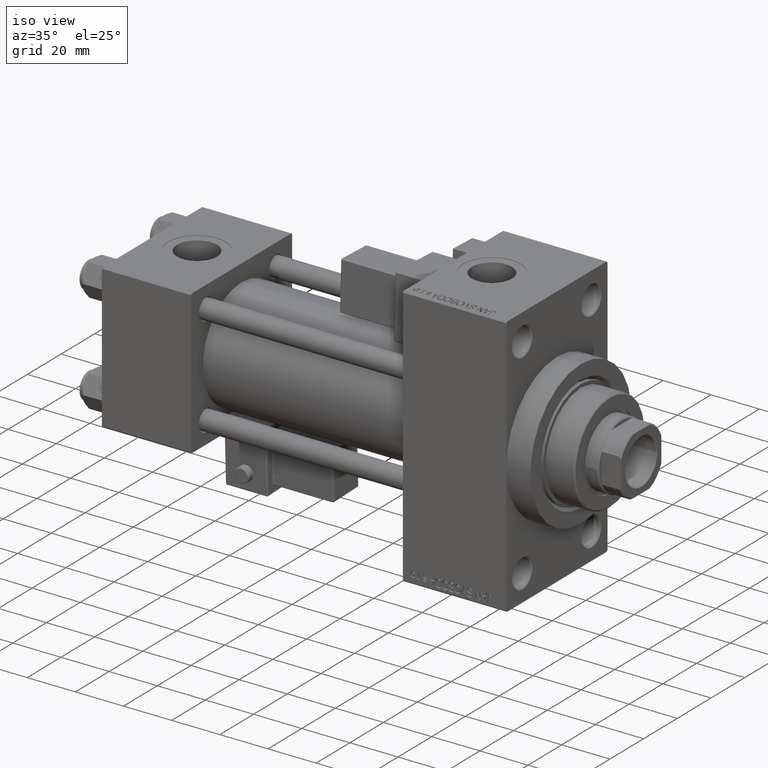
[diagram: clean part render]
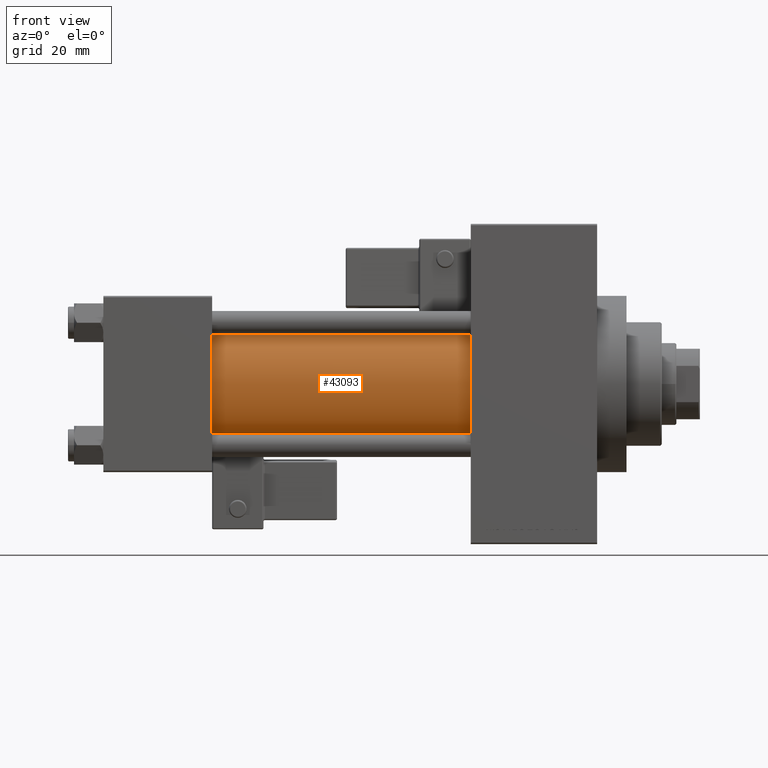
[diagram: tour spotlight — one face highlighted and labeled with its STEP entity id]
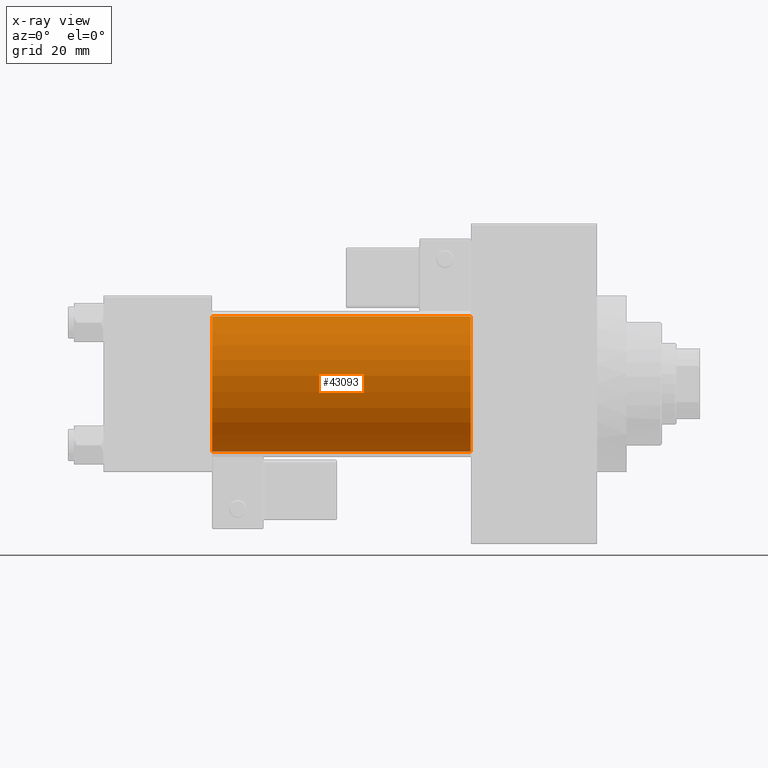
[diagram: x-ray of the same camera — body ghosted, this tour face saturated]
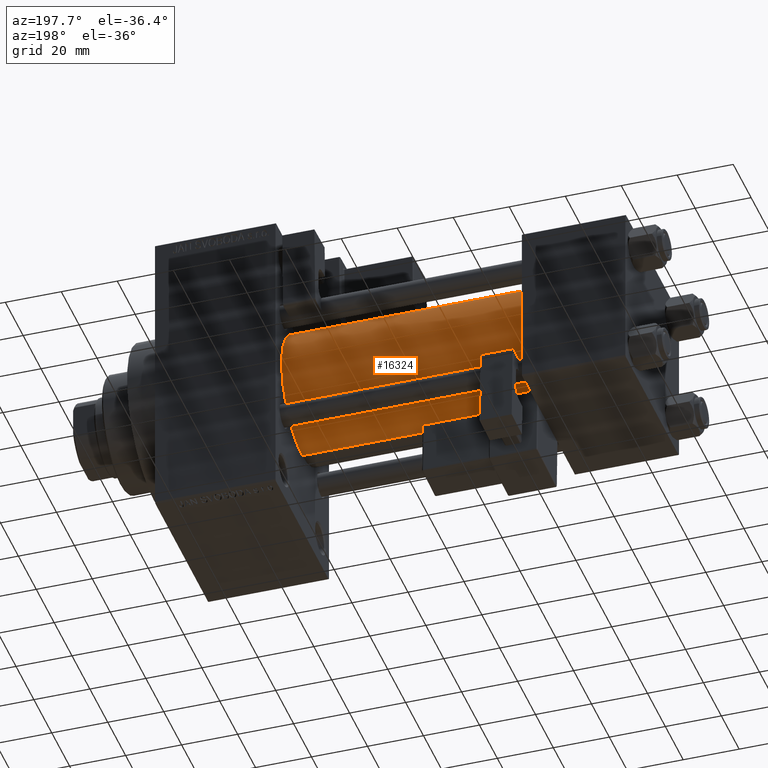
[diagram: tour spotlight — one face highlighted and labeled with its STEP entity id]
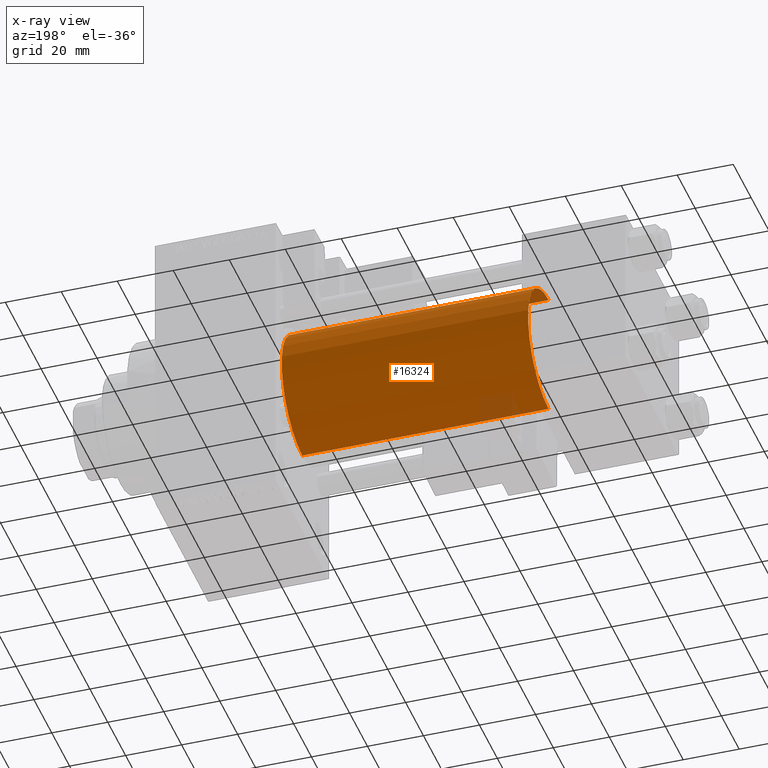
[diagram: x-ray of the same camera — body ghosted, this tour face saturated]
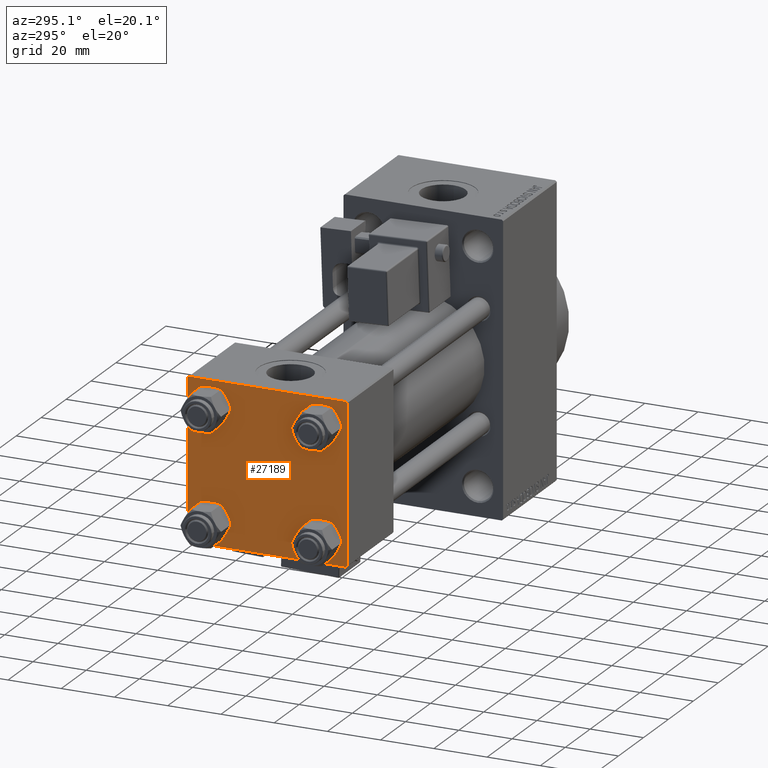
[diagram: tour spotlight — one face highlighted and labeled with its STEP entity id]
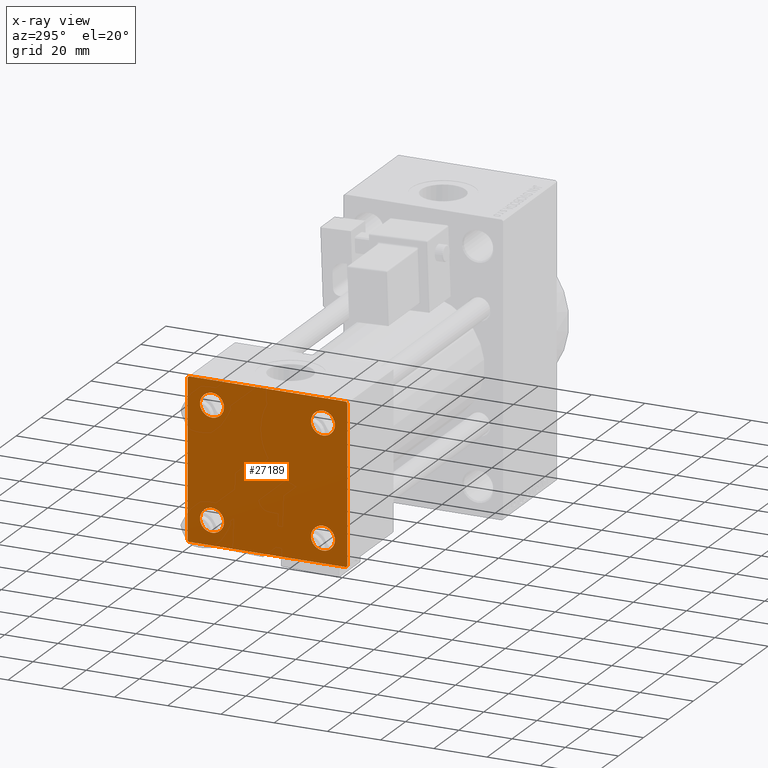
[diagram: x-ray of the same camera — body ghosted, this tour face saturated]
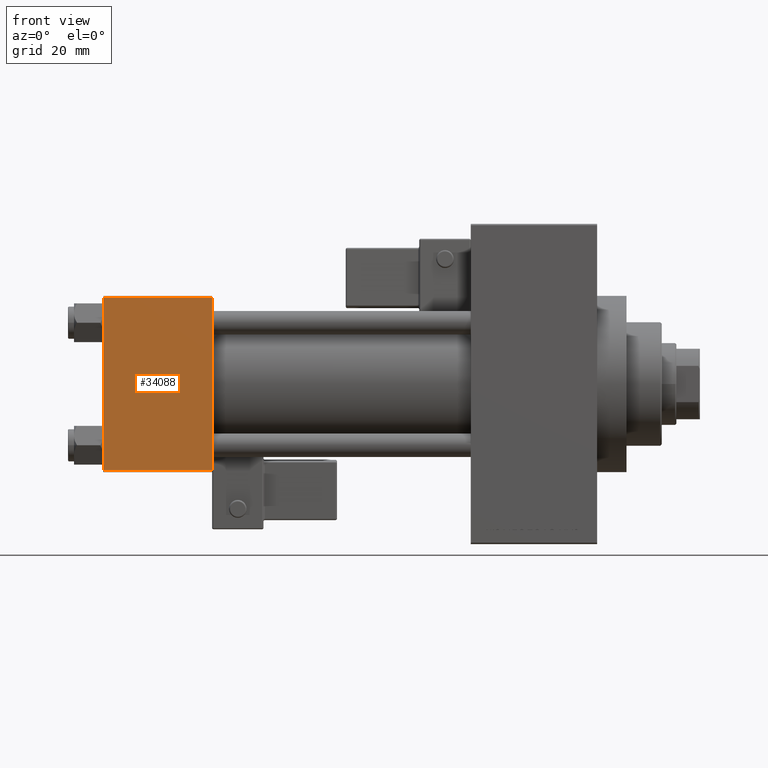
[diagram: tour spotlight — one face highlighted and labeled with its STEP entity id]
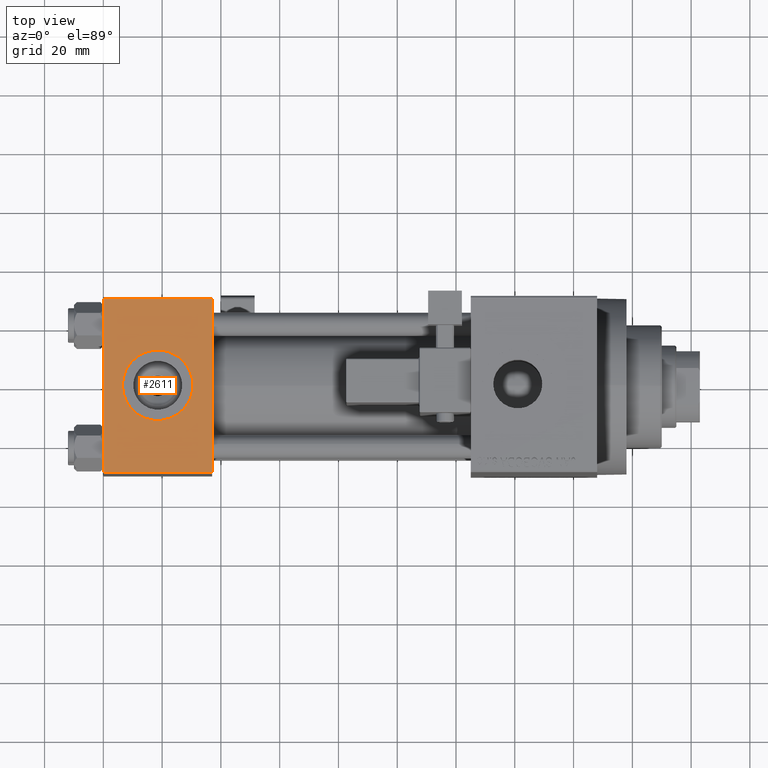
[diagram: tour spotlight — one face highlighted and labeled with its STEP entity id]
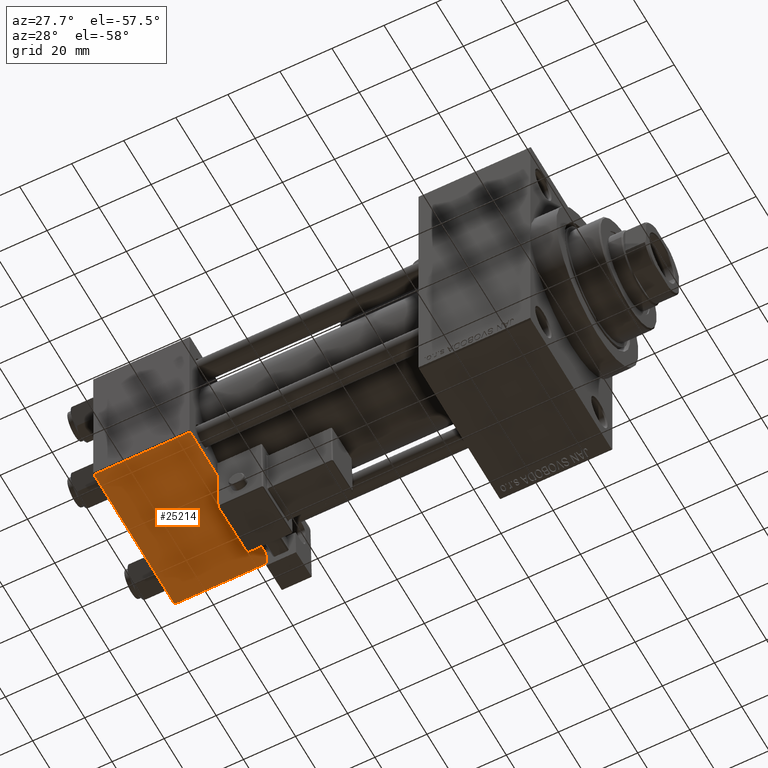
[diagram: tour spotlight — one face highlighted and labeled with its STEP entity id]
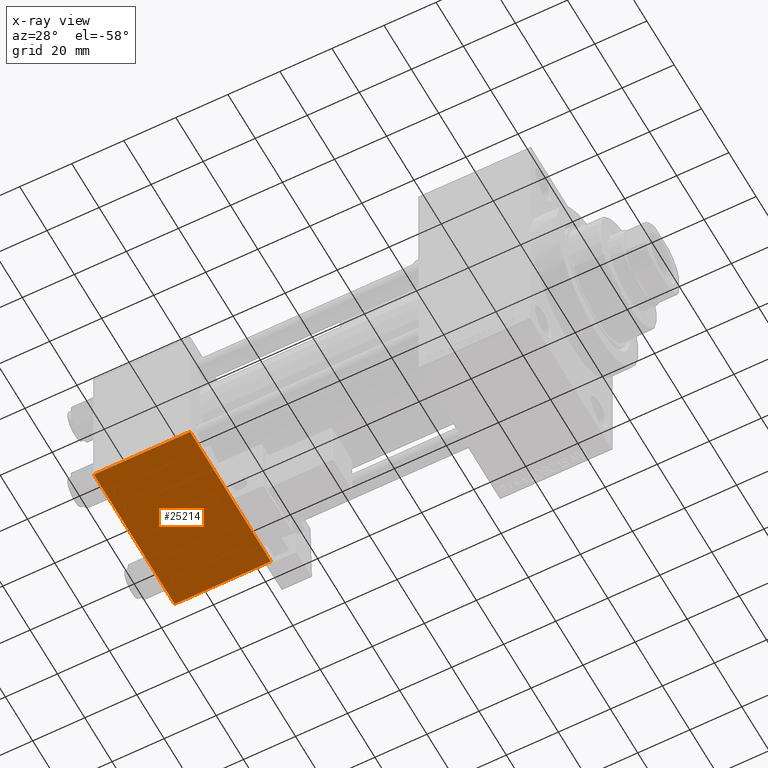
[diagram: x-ray of the same camera — body ghosted, this tour face saturated]
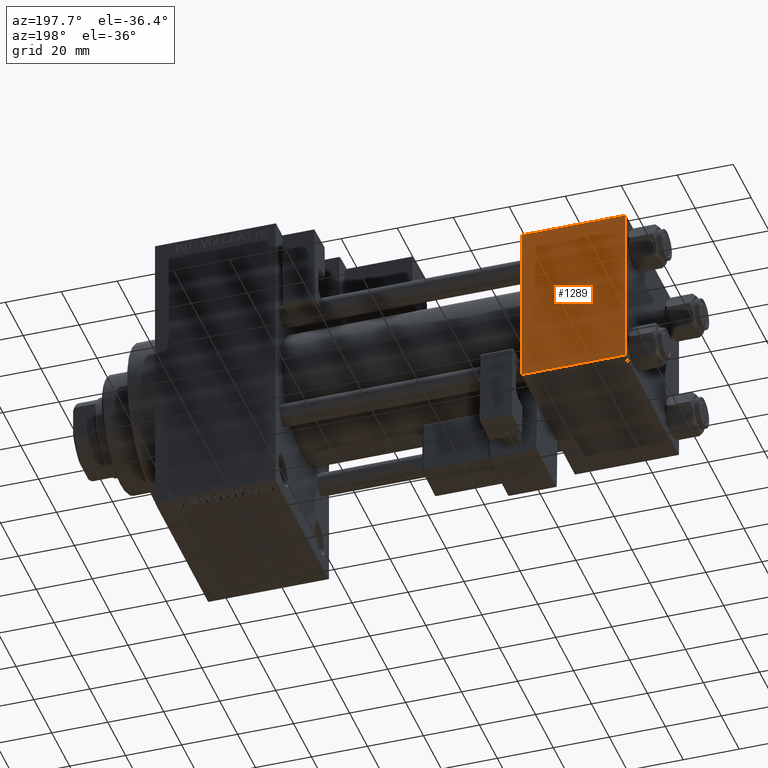
[diagram: tour spotlight — one face highlighted and labeled with its STEP entity id]
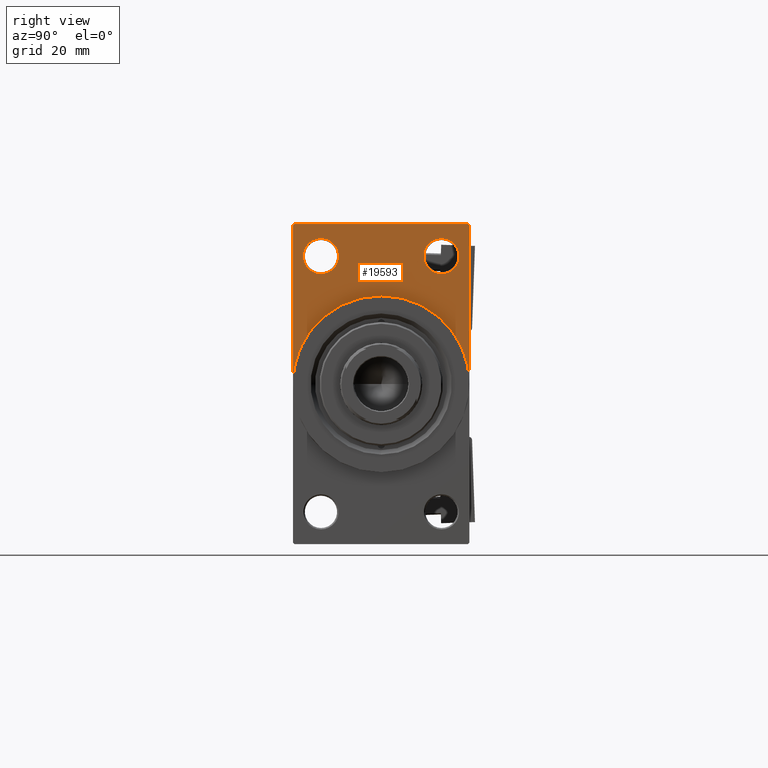
[diagram: tour spotlight — one face highlighted and labeled with its STEP entity id]
A machine part: a face-by-face anatomy tour. The part has 1268 B-rep faces; the first image is the clean iso view, then the 8 largest visible faces are spotlighted one at a time (largest first), each with its STEP entity span.

Face 1 — front view, entity #43093. An x-ray twin of the same camera follows (body ghosted, this face saturated) — the face is partly hidden behind the body. In plain terms, the highlighted cylindrical surface (partial cylindrical patch) has radius 23 mm, axis along (-1, -0, -0).
Definition (entity closure, byte-faithful):
#564 = CARTESIAN_POINT ( 'NONE',  ( 125.0000000000000000, -2.602085213965210642E-15, 0.000000000000000000 ) ) ;
#1056 = CYLINDRICAL_SURFACE ( 'NONE', #39770, 23.00000000000000000 ) ;
#3515 = CARTESIAN_POINT ( 'NONE',  ( 125.0000000000000000, 2.146024240737016609E-16, -23.00000000000000000 ) ) ;
#5657 = EDGE_CURVE ( 'NONE', #30389, #20634, #14041, .T. ) ;
#5686 = DIRECTION ( 'NONE',  ( 1.000000000000000000, 0.000000000000000000, 0.000000000000000000 ) ) ;
#7860 = FACE_OUTER_BOUND ( 'NONE', #36860, .T. ) ;
#8089 = CARTESIAN_POINT ( 'NONE',  ( 125.0000000000000000, -2.602085213965210642E-15, 23.00000000000000000 ) ) ;
#14041 = LINE ( 'NONE', #44699, #17873 ) ;
#14122 = CIRCLE ( 'NONE', #42220, 23.00000000000000000 ) ;
#15074 = LINE ( 'NONE', #3515, #20752 ) ;
#16394 = DIRECTION ( 'NONE',  ( -1.000000000000000000, -0.000000000000000000, -0.000000000000000000 ) ) ;
#17432 = AXIS2_PLACEMENT_3D ( 'NONE', #20281, #5686, #36348 ) ;
#17873 = VECTOR ( 'NONE', #44950, 1000.000000000000000 ) ;
#18183 = ORIENTED_EDGE ( 'NONE', *, *, #5657, .T. ) ;
#19003 = CIRCLE ( 'NONE', #17432, 23.00000000000000000 ) ;
#20281 = CARTESIAN_POINT ( 'NONE',  ( 125.0000000000000000, -2.602085213965210642E-15, 0.000000000000000000 ) ) ;
#20634 = VERTEX_POINT ( 'NONE', #36104 ) ;
#20752 = VECTOR ( 'NONE', #42219, 1000.000000000000000 ) ;
#25243 = DIRECTION ( 'NONE',  ( 0.000000000000000000, 0.000000000000000000, 1.000000000000000000 ) ) ;
#25769 = EDGE_CURVE ( 'NONE', #41494, #37450, #15074, .T. ) ;
#27455 = DIRECTION ( 'NONE',  ( 0.000000000000000000, 0.000000000000000000, 1.000000000000000000 ) ) ;
#29254 = DIRECTION ( 'NONE',  ( 1.000000000000000000, -0.000000000000000000, 0.000000000000000000 ) ) ;
#29704 = ORIENTED_EDGE ( 'NONE', *, *, #46707, .F. ) ;
#30137 = CARTESIAN_POINT ( 'NONE',  ( 37.00000000000000711, 2.146024240737016609E-16, -23.00000000000000000 ) ) ;
#30389 = VERTEX_POINT ( 'NONE', #8089 ) ;
#30952 = ORIENTED_EDGE ( 'NONE', *, *, #25769, .F. ) ;
#36104 = CARTESIAN_POINT ( 'NONE',  ( 37.00000000000000711, -2.602085213965210642E-15, 23.00000000000000000 ) ) ;
#36348 = DIRECTION ( 'NONE',  ( 0.000000000000000000, 0.000000000000000000, -1.000000000000000000 ) ) ;
#36860 = EDGE_LOOP ( 'NONE', ( #30952, #29704, #18183, #45969 ) ) ;
#37450 = VERTEX_POINT ( 'NONE', #30137 ) ;
#39770 = AXIS2_PLACEMENT_3D ( 'NONE', #564, #16394, #27455 ) ;
#40324 = CARTESIAN_POINT ( 'NONE',  ( 37.00000000000000711, -2.602085213965210642E-15, 0.000000000000000000 ) ) ;
#41494 = VERTEX_POINT ( 'NONE', #42676 ) ;
#42051 = EDGE_CURVE ( 'NONE', #20634, #37450, #14122, .T. ) ;
#42219 = DIRECTION ( 'NONE',  ( -1.000000000000000000, -0.000000000000000000, -0.000000000000000000 ) ) ;
#42220 = AXIS2_PLACEMENT_3D ( 'NONE', #40324, #29254, #25243 ) ;
#42676 = CARTESIAN_POINT ( 'NONE',  ( 125.0000000000000000, 2.146024240737016609E-16, -23.00000000000000000 ) ) ;
#43093 = ADVANCED_FACE ( 'NONE', ( #7860 ), #1056, .T. ) ;
#44699 = CARTESIAN_POINT ( 'NONE',  ( 125.0000000000000000, -2.602085213965210642E-15, 23.00000000000000000 ) ) ;
#44950 = DIRECTION ( 'NONE',  ( -1.000000000000000000, -0.000000000000000000, -0.000000000000000000 ) ) ;
#45969 = ORIENTED_EDGE ( 'NONE', *, *, #42051, .T. ) ;
#46707 = EDGE_CURVE ( 'NONE', #30389, #41494, #19003, .T. ) ;

Face 2 — auxiliary view, entity #16324. An x-ray twin of the same camera follows (body ghosted, this face saturated) — the face is partly hidden behind the body. In plain terms, the highlighted cylindrical surface (partial cylindrical patch) has radius 23 mm, axis along (-1, -0, -0).
Definition (entity closure, byte-faithful):
#1864 = ORIENTED_EDGE ( 'NONE', *, *, #25769, .T. ) ;
#3280 = DIRECTION ( 'NONE',  ( 0.000000000000000000, 0.000000000000000000, 1.000000000000000000 ) ) ;
#3515 = CARTESIAN_POINT ( 'NONE',  ( 125.0000000000000000, 2.146024240737016609E-16, -23.00000000000000000 ) ) ;
#3923 = AXIS2_PLACEMENT_3D ( 'NONE', #21888, #29177, #3280 ) ;
#5657 = EDGE_CURVE ( 'NONE', #30389, #20634, #14041, .T. ) ;
#8089 = CARTESIAN_POINT ( 'NONE',  ( 125.0000000000000000, -2.602085213965210642E-15, 23.00000000000000000 ) ) ;
#14041 = LINE ( 'NONE', #44699, #17873 ) ;
#14137 = EDGE_LOOP ( 'NONE', ( #26398, #1864, #45308, #28374 ) ) ;
#15074 = LINE ( 'NONE', #3515, #20752 ) ;
#15453 = EDGE_CURVE ( 'NONE', #41494, #30389, #39740, .T. ) ;
#16324 = ADVANCED_FACE ( 'NONE', ( #22109 ), #25630, .T. ) ;
#17873 = VECTOR ( 'NONE', #44950, 1000.000000000000000 ) ;
#20634 = VERTEX_POINT ( 'NONE', #36104 ) ;
#20752 = VECTOR ( 'NONE', #42219, 1000.000000000000000 ) ;
#21859 = CARTESIAN_POINT ( 'NONE',  ( 125.0000000000000000, -2.602085213965210642E-15, 0.000000000000000000 ) ) ;
#21888 = CARTESIAN_POINT ( 'NONE',  ( 37.00000000000000711, -2.602085213965210642E-15, 0.000000000000000000 ) ) ;
#22109 = FACE_OUTER_BOUND ( 'NONE', #14137, .T. ) ;
#24710 = DIRECTION ( 'NONE',  ( -1.000000000000000000, -0.000000000000000000, -0.000000000000000000 ) ) ;
#25586 = CIRCLE ( 'NONE', #3923, 23.00000000000000000 ) ;
#25630 = CYLINDRICAL_SURFACE ( 'NONE', #26931, 23.00000000000000000 ) ;
#25769 = EDGE_CURVE ( 'NONE', #41494, #37450, #15074, .T. ) ;
#26060 = EDGE_CURVE ( 'NONE', #37450, #20634, #25586, .T. ) ;
#26398 = ORIENTED_EDGE ( 'NONE', *, *, #15453, .F. ) ;
#26931 = AXIS2_PLACEMENT_3D ( 'NONE', #21859, #24710, #39795 ) ;
#28374 = ORIENTED_EDGE ( 'NONE', *, *, #5657, .F. ) ;
#29177 = DIRECTION ( 'NONE',  ( 1.000000000000000000, -0.000000000000000000, 0.000000000000000000 ) ) ;
#29387 = DIRECTION ( 'NONE',  ( 1.000000000000000000, 0.000000000000000000, 0.000000000000000000 ) ) ;
#30137 = CARTESIAN_POINT ( 'NONE',  ( 37.00000000000000711, 2.146024240737016609E-16, -23.00000000000000000 ) ) ;
#30389 = VERTEX_POINT ( 'NONE', #8089 ) ;
#35756 = AXIS2_PLACEMENT_3D ( 'NONE', #44719, #29387, #40962 ) ;
#36104 = CARTESIAN_POINT ( 'NONE',  ( 37.00000000000000711, -2.602085213965210642E-15, 23.00000000000000000 ) ) ;
#37450 = VERTEX_POINT ( 'NONE', #30137 ) ;
#39740 = CIRCLE ( 'NONE', #35756, 23.00000000000000000 ) ;
#39795 = DIRECTION ( 'NONE',  ( 0.000000000000000000, 0.000000000000000000, 1.000000000000000000 ) ) ;
#40962 = DIRECTION ( 'NONE',  ( 0.000000000000000000, 0.000000000000000000, -1.000000000000000000 ) ) ;
#41494 = VERTEX_POINT ( 'NONE', #42676 ) ;
#42219 = DIRECTION ( 'NONE',  ( -1.000000000000000000, -0.000000000000000000, -0.000000000000000000 ) ) ;
#42676 = CARTESIAN_POINT ( 'NONE',  ( 125.0000000000000000, 2.146024240737016609E-16, -23.00000000000000000 ) ) ;
#44699 = CARTESIAN_POINT ( 'NONE',  ( 125.0000000000000000, -2.602085213965210642E-15, 23.00000000000000000 ) ) ;
#44719 = CARTESIAN_POINT ( 'NONE',  ( 125.0000000000000000, -2.602085213965210642E-15, 0.000000000000000000 ) ) ;
#44950 = DIRECTION ( 'NONE',  ( -1.000000000000000000, -0.000000000000000000, -0.000000000000000000 ) ) ;
#45308 = ORIENTED_EDGE ( 'NONE', *, *, #26060, .T. ) ;

Face 3 — auxiliary view, entity #27189. An x-ray twin of the same camera follows (body ghosted, this face saturated) — the face is partly hidden behind the body. In plain terms, the highlighted planar face has unit normal (-1, 0, 0).
Definition (entity closure, byte-faithful):
#206 = VERTEX_POINT ( 'NONE', #18812 ) ;
#448 = DIRECTION ( 'NONE',  ( 1.000000000000000000, -0.000000000000000000, 0.000000000000000000 ) ) ;
#637 = DIRECTION ( 'NONE',  ( 0.000000000000000000, 0.000000000000000000, 1.000000000000000000 ) ) ;
#661 = EDGE_CURVE ( 'NONE', #44142, #16740, #28389, .T. ) ;
#697 = CARTESIAN_POINT ( 'NONE',  ( 0.000000000000000000, 20.84999999999999787, -16.34999999999998366 ) ) ;
#2043 = EDGE_CURVE ( 'NONE', #12295, #30653, #15181, .T. ) ;
#3199 = CARTESIAN_POINT ( 'NONE',  ( 0.000000000000000000, -20.84999999999999076, 20.85000000000000497 ) ) ;
#3884 = CARTESIAN_POINT ( 'NONE',  ( 0.000000000000000000, -20.84999999999999076, 16.34999999999998721 ) ) ;
#3955 = DIRECTION ( 'NONE',  ( 0.000000000000000000, 0.000000000000000000, -1.000000000000000000 ) ) ;
#4541 = AXIS2_PLACEMENT_3D ( 'NONE', #22105, #37428, #9953 ) ;
#4855 = VERTEX_POINT ( 'NONE', #41926 ) ;
#4895 = ORIENTED_EDGE ( 'NONE', *, *, #36828, .T. ) ;
#4947 = VERTEX_POINT ( 'NONE', #32085 ) ;
#5427 = VERTEX_POINT ( 'NONE', #17825 ) ;
#5690 = VERTEX_POINT ( 'NONE', #9463 ) ;
#6079 = VECTOR ( 'NONE', #46452, 1000.000000000000000 ) ;
#6154 = CARTESIAN_POINT ( 'NONE',  ( 0.000000000000000000, 20.84999999999999787, 16.34999999999998366 ) ) ;
#7138 = DIRECTION ( 'NONE',  ( 0.000000000000000000, 0.000000000000000000, -1.000000000000000000 ) ) ;
#7223 = CARTESIAN_POINT ( 'NONE',  ( 0.000000000000000000, 20.84999999999999787, -25.35000000000001918 ) ) ;
#7500 = DIRECTION ( 'NONE',  ( -1.000000000000000000, 0.000000000000000000, -0.000000000000000000 ) ) ;
#7698 = VECTOR ( 'NONE', #27530, 1000.000000000000114 ) ;
#7748 = CARTESIAN_POINT ( 'NONE',  ( 0.000000000000000000, 0.000000000000000000, 0.000000000000000000 ) ) ;
#7978 = EDGE_CURVE ( 'NONE', #14724, #29151, #27610, .T. ) ;
#8424 = CARTESIAN_POINT ( 'NONE',  ( 0.000000000000000000, -29.50000000000000000, -30.00000000000000711 ) ) ;
#9127 = AXIS2_PLACEMENT_3D ( 'NONE', #49738, #448, #23079 ) ;
#9463 = CARTESIAN_POINT ( 'NONE',  ( 0.000000000000000000, -30.00000000000000000, -29.50000000000001776 ) ) ;
#9687 = DIRECTION ( 'NONE',  ( 0.000000000000000000, 0.000000000000000000, 1.000000000000000000 ) ) ;
#9953 = DIRECTION ( 'NONE',  ( 0.000000000000000000, 0.000000000000000000, 1.000000000000000000 ) ) ;
#10070 = CARTESIAN_POINT ( 'NONE',  ( 0.000000000000000000, 29.99999999999999289, -29.50000000000000000 ) ) ;
#10481 = CIRCLE ( 'NONE', #12883, 4.500000000000017764 ) ;
#10523 = FACE_BOUND ( 'NONE', #30205, .T. ) ;
#10992 = DIRECTION ( 'NONE',  ( 0.000000000000000000, 0.000000000000000000, 1.000000000000000000 ) ) ;
#11019 = CARTESIAN_POINT ( 'NONE',  ( -0.000000000000000000, -29.74999999999999645, 29.74999999999999645 ) ) ;
#11342 = VECTOR ( 'NONE', #30370, 1000.000000000000114 ) ;
#12295 = VERTEX_POINT ( 'NONE', #24321 ) ;
#12591 = ORIENTED_EDGE ( 'NONE', *, *, #661, .T. ) ;
#12883 = AXIS2_PLACEMENT_3D ( 'NONE', #32568, #21253, #9687 ) ;
#12902 = EDGE_LOOP ( 'NONE', ( #37441, #4895, #26954, #25323, #33231, #12591, #43045, #38837 ) ) ;
#12976 = EDGE_LOOP ( 'NONE', ( #42156, #22030 ) ) ;
#13016 = VECTOR ( 'NONE', #7138, 1000.000000000000000 ) ;
#14001 = CARTESIAN_POINT ( 'NONE',  ( 0.000000000000000000, -20.84999999999999076, -20.85000000000000497 ) ) ;
#14724 = VERTEX_POINT ( 'NONE', #697 ) ;
#14947 = CIRCLE ( 'NONE', #4541, 4.500000000000017764 ) ;
#15181 = LINE ( 'NONE', #30513, #13016 ) ;
#15295 = VECTOR ( 'NONE', #3955, 1000.000000000000000 ) ;
#15729 = LINE ( 'NONE', #34342, #33631 ) ;
#15769 = EDGE_CURVE ( 'NONE', #4855, #33428, #17317, .T. ) ;
#15788 = LINE ( 'NONE', #23576, #6079 ) ;
#16031 = PLANE ( 'NONE',  #32042 ) ;
#16079 = CARTESIAN_POINT ( 'NONE',  ( 0.000000000000000000, -29.75000000000001066, -29.75000000000001066 ) ) ;
#16740 = VERTEX_POINT ( 'NONE', #41157 ) ;
#16939 = CARTESIAN_POINT ( 'NONE',  ( 0.000000000000000000, -20.84999999999999076, 25.35000000000002274 ) ) ;
#17317 = CIRCLE ( 'NONE', #38193, 4.500000000000017764 ) ;
#17825 = CARTESIAN_POINT ( 'NONE',  ( 0.000000000000000000, 29.49999999999999289, 30.00000000000000000 ) ) ;
#18812 = CARTESIAN_POINT ( 'NONE',  ( 0.000000000000000000, 20.84999999999999787, 25.35000000000001918 ) ) ;
#19182 = EDGE_CURVE ( 'NONE', #28895, #206, #29472, .T. ) ;
#19597 = VERTEX_POINT ( 'NONE', #3884 ) ;
#20214 = EDGE_LOOP ( 'NONE', ( #41745, #21363 ) ) ;
#20487 = LINE ( 'NONE', #23762, #7698 ) ;
#20843 = LINE ( 'NONE', #16079, #40566 ) ;
#21253 = DIRECTION ( 'NONE',  ( 1.000000000000000000, -0.000000000000000000, 0.000000000000000000 ) ) ;
#21363 = ORIENTED_EDGE ( 'NONE', *, *, #19182, .T. ) ;
#22030 = ORIENTED_EDGE ( 'NONE', *, *, #29222, .T. ) ;
#22105 = CARTESIAN_POINT ( 'NONE',  ( 0.000000000000000000, -20.84999999999999076, 20.85000000000000497 ) ) ;
#22544 = VERTEX_POINT ( 'NONE', #8424 ) ;
#22593 = CARTESIAN_POINT ( 'NONE',  ( 0.000000000000000000, -20.84999999999999076, -25.35000000000002274 ) ) ;
#22595 = EDGE_CURVE ( 'NONE', #33428, #4855, #23191, .T. ) ;
#23079 = DIRECTION ( 'NONE',  ( 0.000000000000000000, 0.000000000000000000, 1.000000000000000000 ) ) ;
#23179 = EDGE_CURVE ( 'NONE', #5427, #16740, #15729, .T. ) ;
#23191 = CIRCLE ( 'NONE', #41650, 4.500000000000017764 ) ;
#23247 = CARTESIAN_POINT ( 'NONE',  ( 0.000000000000000000, 29.74999999999957723, -29.75000000000040501 ) ) ;
#23576 = CARTESIAN_POINT ( 'NONE',  ( 0.000000000000000000, 29.99999999999999289, -30.00000000000000000 ) ) ;
#23762 = CARTESIAN_POINT ( 'NONE',  ( 0.000000000000000000, 29.74999999999999645, 29.74999999999999645 ) ) ;
#24321 = CARTESIAN_POINT ( 'NONE',  ( 0.000000000000000000, 29.99999999999999289, 29.50000000000000000 ) ) ;
#24753 = DIRECTION ( 'NONE',  ( 1.000000000000000000, -0.000000000000000000, 0.000000000000000000 ) ) ;
#25323 = ORIENTED_EDGE ( 'NONE', *, *, #40348, .T. ) ;
#25818 = CARTESIAN_POINT ( 'NONE',  ( 0.000000000000000000, 20.84999999999999787, 20.85000000000000142 ) ) ;
#25855 = FACE_BOUND ( 'NONE', #48975, .T. ) ;
#26065 = CIRCLE ( 'NONE', #32498, 4.500000000000017764 ) ;
#26567 = DIRECTION ( 'NONE',  ( 0.000000000000000000, 0.000000000000000000, 1.000000000000000000 ) ) ;
#26604 = FACE_OUTER_BOUND ( 'NONE', #12902, .T. ) ;
#26954 = ORIENTED_EDGE ( 'NONE', *, *, #44483, .T. ) ;
#27189 = ADVANCED_FACE ( 'NONE', ( #10523, #25855, #41200, #41453, #26604 ), #16031, .T. ) ;
#27316 = CARTESIAN_POINT ( 'NONE',  ( 0.000000000000000000, -30.00000000000000000, 29.99999999999999289 ) ) ;
#27530 = DIRECTION ( 'NONE',  ( 0.000000000000000000, 0.7071067811865474617, -0.7071067811865474617 ) ) ;
#27610 = CIRCLE ( 'NONE', #9127, 4.500000000000017764 ) ;
#28389 = LINE ( 'NONE', #11019, #11342 ) ;
#28524 = CARTESIAN_POINT ( 'NONE',  ( 0.000000000000000000, -20.84999999999999076, -20.85000000000000497 ) ) ;
#28895 = VERTEX_POINT ( 'NONE', #6154 ) ;
#29151 = VERTEX_POINT ( 'NONE', #7223 ) ;
#29222 = EDGE_CURVE ( 'NONE', #29151, #14724, #10481, .T. ) ;
#29472 = CIRCLE ( 'NONE', #38300, 4.500000000000017764 ) ;
#29799 = EDGE_CURVE ( 'NONE', #44142, #5690, #45682, .T. ) ;
#30205 = EDGE_LOOP ( 'NONE', ( #38514, #35308 ) ) ;
#30370 = DIRECTION ( 'NONE',  ( -0.000000000000000000, 0.7071067811865474617, 0.7071067811865474617 ) ) ;
#30513 = CARTESIAN_POINT ( 'NONE',  ( 0.000000000000000000, 29.99999999999999289, 30.00000000000000000 ) ) ;
#30653 = VERTEX_POINT ( 'NONE', #10070 ) ;
#31688 = ORIENTED_EDGE ( 'NONE', *, *, #22595, .T. ) ;
#32042 = AXIS2_PLACEMENT_3D ( 'NONE', #7748, #7500, #39157 ) ;
#32085 = CARTESIAN_POINT ( 'NONE',  ( 0.000000000000000000, 29.49999999999997868, -30.00000000000000000 ) ) ;
#32498 = AXIS2_PLACEMENT_3D ( 'NONE', #3199, #49209, #10992 ) ;
#32568 = CARTESIAN_POINT ( 'NONE',  ( 0.000000000000000000, 20.84999999999999787, -20.85000000000000142 ) ) ;
#32613 = DIRECTION ( 'NONE',  ( 0.000000000000000000, 0.000000000000000000, 1.000000000000000000 ) ) ;
#33231 = ORIENTED_EDGE ( 'NONE', *, *, #29799, .F. ) ;
#33428 = VERTEX_POINT ( 'NONE', #22593 ) ;
#33631 = VECTOR ( 'NONE', #46892, 1000.000000000000000 ) ;
#34064 = EDGE_CURVE ( 'NONE', #206, #28895, #39603, .T. ) ;
#34342 = CARTESIAN_POINT ( 'NONE',  ( 0.000000000000000000, 29.99999999999999289, 30.00000000000000000 ) ) ;
#35308 = ORIENTED_EDGE ( 'NONE', *, *, #38841, .T. ) ;
#35978 = VERTEX_POINT ( 'NONE', #16939 ) ;
#36828 = EDGE_CURVE ( 'NONE', #30653, #4947, #47125, .T. ) ;
#37428 = DIRECTION ( 'NONE',  ( 1.000000000000000000, -0.000000000000000000, 0.000000000000000000 ) ) ;
#37441 = ORIENTED_EDGE ( 'NONE', *, *, #2043, .T. ) ;
#38193 = AXIS2_PLACEMENT_3D ( 'NONE', #14001, #44167, #32613 ) ;
#38300 = AXIS2_PLACEMENT_3D ( 'NONE', #25818, #41416, #26567 ) ;
#38514 = ORIENTED_EDGE ( 'NONE', *, *, #45310, .T. ) ;
#38579 = DIRECTION ( 'NONE',  ( -0.000000000000000000, -0.7071067811865574537, -0.7071067811865376918 ) ) ;
#38837 = ORIENTED_EDGE ( 'NONE', *, *, #41853, .T. ) ;
#38841 = EDGE_CURVE ( 'NONE', #19597, #35978, #26065, .T. ) ;
#39157 = DIRECTION ( 'NONE',  ( -0.000000000000000000, 0.000000000000000000, 1.000000000000000000 ) ) ;
#39603 = CIRCLE ( 'NONE', #46027, 4.500000000000017764 ) ;
#39696 = DIRECTION ( 'NONE',  ( 0.000000000000000000, -0.7071067811865474617, 0.7071067811865474617 ) ) ;
#39883 = DIRECTION ( 'NONE',  ( 0.000000000000000000, 0.000000000000000000, 1.000000000000000000 ) ) ;
#40348 = EDGE_CURVE ( 'NONE', #22544, #5690, #20843, .T. ) ;
#40566 = VECTOR ( 'NONE', #39696, 1000.000000000000114 ) ;
#41157 = CARTESIAN_POINT ( 'NONE',  ( 0.000000000000000000, -29.49999999999998579, 29.99999999999999289 ) ) ;
#41200 = FACE_BOUND ( 'NONE', #12976, .T. ) ;
#41416 = DIRECTION ( 'NONE',  ( 1.000000000000000000, -0.000000000000000000, 0.000000000000000000 ) ) ;
#41453 = FACE_BOUND ( 'NONE', #20214, .T. ) ;
#41650 = AXIS2_PLACEMENT_3D ( 'NONE', #28524, #24753, #637 ) ;
#41745 = ORIENTED_EDGE ( 'NONE', *, *, #34064, .T. ) ;
#41853 = EDGE_CURVE ( 'NONE', #5427, #12295, #20487, .T. ) ;
#41926 = CARTESIAN_POINT ( 'NONE',  ( 0.000000000000000000, -20.84999999999999076, -16.34999999999998721 ) ) ;
#42156 = ORIENTED_EDGE ( 'NONE', *, *, #7978, .T. ) ;
#42829 = VECTOR ( 'NONE', #38579, 999.9999999999998863 ) ;
#43045 = ORIENTED_EDGE ( 'NONE', *, *, #23179, .F. ) ;
#43647 = CARTESIAN_POINT ( 'NONE',  ( 0.000000000000000000, 20.84999999999999787, 20.85000000000000142 ) ) ;
#44142 = VERTEX_POINT ( 'NONE', #49564 ) ;
#44167 = DIRECTION ( 'NONE',  ( 1.000000000000000000, -0.000000000000000000, 0.000000000000000000 ) ) ;
#44483 = EDGE_CURVE ( 'NONE', #4947, #22544, #15788, .T. ) ;
#45310 = EDGE_CURVE ( 'NONE', #35978, #19597, #14947, .T. ) ;
#45682 = LINE ( 'NONE', #27316, #15295 ) ;
#46027 = AXIS2_PLACEMENT_3D ( 'NONE', #43647, #46935, #39883 ) ;
#46452 = DIRECTION ( 'NONE',  ( 0.000000000000000000, -1.000000000000000000, -1.156482317317871725E-16 ) ) ;
#46623 = ORIENTED_EDGE ( 'NONE', *, *, #15769, .T. ) ;
#46892 = DIRECTION ( 'NONE',  ( 0.000000000000000000, -1.000000000000000000, -1.156482317317871725E-16 ) ) ;
#46935 = DIRECTION ( 'NONE',  ( 1.000000000000000000, -0.000000000000000000, 0.000000000000000000 ) ) ;
#47125 = LINE ( 'NONE', #23247, #42829 ) ;
#48975 = EDGE_LOOP ( 'NONE', ( #46623, #31688 ) ) ;
#49209 = DIRECTION ( 'NONE',  ( 1.000000000000000000, -0.000000000000000000, 0.000000000000000000 ) ) ;
#49564 = CARTESIAN_POINT ( 'NONE',  ( 0.000000000000000000, -30.00000000000000000, 29.49999999999999289 ) ) ;
#49738 = CARTESIAN_POINT ( 'NONE',  ( 0.000000000000000000, 20.84999999999999787, -20.85000000000000142 ) ) ;

Face 4 — front view, entity #34088. In plain terms, the highlighted planar face has unit normal (0, 1, 0).
Definition (entity closure, byte-faithful):
#1310 = EDGE_CURVE ( 'NONE', #2869, #2505, #19872, .T. ) ;
#2505 = VERTEX_POINT ( 'NONE', #19818 ) ;
#2869 = VERTEX_POINT ( 'NONE', #39361 ) ;
#3243 = EDGE_CURVE ( 'NONE', #5690, #2505, #45805, .T. ) ;
#3955 = DIRECTION ( 'NONE',  ( 0.000000000000000000, 0.000000000000000000, -1.000000000000000000 ) ) ;
#4956 = DIRECTION ( 'NONE',  ( 0.000000000000000000, -0.000000000000000000, 1.000000000000000000 ) ) ;
#5690 = VERTEX_POINT ( 'NONE', #9463 ) ;
#9463 = CARTESIAN_POINT ( 'NONE',  ( 0.000000000000000000, -30.00000000000000000, -29.50000000000001776 ) ) ;
#12494 = PLANE ( 'NONE',  #34791 ) ;
#12737 = FACE_OUTER_BOUND ( 'NONE', #15742, .T. ) ;
#15295 = VECTOR ( 'NONE', #3955, 1000.000000000000000 ) ;
#15742 = EDGE_LOOP ( 'NONE', ( #38458, #19181, #23779, #34284 ) ) ;
#15848 = CARTESIAN_POINT ( 'NONE',  ( 37.00000000000000000, -30.00000000000000000, 29.99999999999999289 ) ) ;
#18182 = DIRECTION ( 'NONE',  ( 1.000000000000000000, 0.000000000000000000, 0.000000000000000000 ) ) ;
#18427 = CARTESIAN_POINT ( 'NONE',  ( 37.00000000000000000, -30.00000000000000000, -29.50000000000001776 ) ) ;
#19181 = ORIENTED_EDGE ( 'NONE', *, *, #3243, .T. ) ;
#19550 = EDGE_CURVE ( 'NONE', #2869, #44142, #24405, .T. ) ;
#19818 = CARTESIAN_POINT ( 'NONE',  ( 37.00000000000000000, -30.00000000000000000, -29.50000000000001776 ) ) ;
#19872 = LINE ( 'NONE', #15848, #37060 ) ;
#20119 = DIRECTION ( 'NONE',  ( 0.000000000000000000, 0.000000000000000000, -1.000000000000000000 ) ) ;
#23057 = VECTOR ( 'NONE', #24906, 1000.000000000000000 ) ;
#23779 = ORIENTED_EDGE ( 'NONE', *, *, #1310, .F. ) ;
#24405 = LINE ( 'NONE', #42337, #23057 ) ;
#24554 = DIRECTION ( 'NONE',  ( -0.000000000000000000, 1.000000000000000000, 0.000000000000000000 ) ) ;
#24906 = DIRECTION ( 'NONE',  ( -1.000000000000000000, 0.000000000000000000, 0.000000000000000000 ) ) ;
#27316 = CARTESIAN_POINT ( 'NONE',  ( 0.000000000000000000, -30.00000000000000000, 29.99999999999999289 ) ) ;
#27831 = CARTESIAN_POINT ( 'NONE',  ( 37.00000000000000000, -30.00000000000000000, 29.99999999999999289 ) ) ;
#28305 = VECTOR ( 'NONE', #18182, 1000.000000000000000 ) ;
#29799 = EDGE_CURVE ( 'NONE', #44142, #5690, #45682, .T. ) ;
#34088 = ADVANCED_FACE ( 'NONE', ( #12737 ), #12494, .F. ) ;
#34284 = ORIENTED_EDGE ( 'NONE', *, *, #19550, .T. ) ;
#34791 = AXIS2_PLACEMENT_3D ( 'NONE', #27831, #24554, #4956 ) ;
#37060 = VECTOR ( 'NONE', #20119, 1000.000000000000000 ) ;
#38458 = ORIENTED_EDGE ( 'NONE', *, *, #29799, .T. ) ;
#39361 = CARTESIAN_POINT ( 'NONE',  ( 37.00000000000000000, -30.00000000000000000, 29.49999999999999289 ) ) ;
#42337 = CARTESIAN_POINT ( 'NONE',  ( 37.00000000000000000, -30.00000000000000000, 29.49999999999999289 ) ) ;
#44142 = VERTEX_POINT ( 'NONE', #49564 ) ;
#45682 = LINE ( 'NONE', #27316, #15295 ) ;
#45805 = LINE ( 'NONE', #18427, #28305 ) ;
#49564 = CARTESIAN_POINT ( 'NONE',  ( 0.000000000000000000, -30.00000000000000000, 29.49999999999999289 ) ) ;

Face 5 — top view, entity #2611. In plain terms, the highlighted planar face has unit normal (0, 0, -1).
Definition (entity closure, byte-faithful):
#1523 = ORIENTED_EDGE ( 'NONE', *, *, #23179, .T. ) ;
#2455 = LINE ( 'NONE', #29596, #5973 ) ;
#2609 = CIRCLE ( 'NONE', #34733, 12.00000000000000000 ) ;
#2611 = ADVANCED_FACE ( 'NONE', ( #5965, #6217 ), #32862, .F. ) ;
#3384 = EDGE_CURVE ( 'NONE', #13829, #5661, #2609, .T. ) ;
#3837 = EDGE_CURVE ( 'NONE', #16740, #13641, #13958, .T. ) ;
#4074 = CARTESIAN_POINT ( 'NONE',  ( 18.50000000000000000, -3.469446951953614978E-15, 29.99999999999999645 ) ) ;
#4320 = LINE ( 'NONE', #5073, #28964 ) ;
#4767 = ORIENTED_EDGE ( 'NONE', *, *, #30532, .F. ) ;
#5073 = CARTESIAN_POINT ( 'NONE',  ( 37.00000000000000000, 29.99999999999999289, 30.00000000000000000 ) ) ;
#5427 = VERTEX_POINT ( 'NONE', #17825 ) ;
#5661 = VERTEX_POINT ( 'NONE', #6748 ) ;
#5862 = EDGE_CURVE ( 'NONE', #5661, #13829, #23489, .T. ) ;
#5965 = FACE_BOUND ( 'NONE', #44952, .T. ) ;
#5973 = VECTOR ( 'NONE', #44926, 1000.000000000000000 ) ;
#6217 = FACE_OUTER_BOUND ( 'NONE', #28110, .T. ) ;
#6401 = CARTESIAN_POINT ( 'NONE',  ( 6.499999999999997335, -1.999870792976790833E-15, 29.99999999999999645 ) ) ;
#6748 = CARTESIAN_POINT ( 'NONE',  ( 30.50000000000000000, -3.469446951953614978E-15, 29.99999999999999645 ) ) ;
#8086 = DIRECTION ( 'NONE',  ( 1.000000000000000000, 0.000000000000000000, 0.000000000000000000 ) ) ;
#8654 = CARTESIAN_POINT ( 'NONE',  ( 37.00000000000000000, 29.49999999999999289, 30.00000000000000000 ) ) ;
#9732 = DIRECTION ( 'NONE',  ( 0.000000000000000000, 1.000000000000000000, 1.156482317317871725E-16 ) ) ;
#10479 = CARTESIAN_POINT ( 'NONE',  ( 37.00000000000000000, 29.99999999999999289, 30.00000000000000000 ) ) ;
#12791 = ORIENTED_EDGE ( 'NONE', *, *, #38816, .T. ) ;
#13641 = VERTEX_POINT ( 'NONE', #42630 ) ;
#13829 = VERTEX_POINT ( 'NONE', #6401 ) ;
#13958 = LINE ( 'NONE', #32385, #37161 ) ;
#14171 = ORIENTED_EDGE ( 'NONE', *, *, #5862, .F. ) ;
#15513 = DIRECTION ( 'NONE',  ( 0.000000000000000000, 0.000000000000000000, 1.000000000000000000 ) ) ;
#15729 = LINE ( 'NONE', #34342, #33631 ) ;
#16255 = AXIS2_PLACEMENT_3D ( 'NONE', #10479, #48448, #9732 ) ;
#16740 = VERTEX_POINT ( 'NONE', #41157 ) ;
#17825 = CARTESIAN_POINT ( 'NONE',  ( 0.000000000000000000, 29.49999999999999289, 30.00000000000000000 ) ) ;
#23179 = EDGE_CURVE ( 'NONE', #5427, #16740, #15729, .T. ) ;
#23489 = CIRCLE ( 'NONE', #32316, 12.00000000000000000 ) ;
#28110 = EDGE_LOOP ( 'NONE', ( #1523, #33725, #4767, #12791 ) ) ;
#28334 = ORIENTED_EDGE ( 'NONE', *, *, #3384, .F. ) ;
#28964 = VECTOR ( 'NONE', #47055, 1000.000000000000000 ) ;
#29596 = CARTESIAN_POINT ( 'NONE',  ( 0.000000000000000000, 29.49999999999999289, 30.00000000000000000 ) ) ;
#30532 = EDGE_CURVE ( 'NONE', #36808, #13641, #4320, .T. ) ;
#32316 = AXIS2_PLACEMENT_3D ( 'NONE', #38884, #15513, #46181 ) ;
#32385 = CARTESIAN_POINT ( 'NONE',  ( 37.00000000000000000, -29.50000000000000000, 29.99999999999999289 ) ) ;
#32862 = PLANE ( 'NONE',  #16255 ) ;
#33631 = VECTOR ( 'NONE', #46892, 1000.000000000000000 ) ;
#33725 = ORIENTED_EDGE ( 'NONE', *, *, #3837, .T. ) ;
#34342 = CARTESIAN_POINT ( 'NONE',  ( 0.000000000000000000, 29.99999999999999289, 30.00000000000000000 ) ) ;
#34733 = AXIS2_PLACEMENT_3D ( 'NONE', #4074, #34737, #8086 ) ;
#34737 = DIRECTION ( 'NONE',  ( 0.000000000000000000, 0.000000000000000000, 1.000000000000000000 ) ) ;
#36808 = VERTEX_POINT ( 'NONE', #8654 ) ;
#37161 = VECTOR ( 'NONE', #46984, 1000.000000000000000 ) ;
#38816 = EDGE_CURVE ( 'NONE', #36808, #5427, #2455, .T. ) ;
#38884 = CARTESIAN_POINT ( 'NONE',  ( 18.50000000000000000, -3.469446951953614978E-15, 29.99999999999999645 ) ) ;
#41157 = CARTESIAN_POINT ( 'NONE',  ( 0.000000000000000000, -29.49999999999998579, 29.99999999999999289 ) ) ;
#42630 = CARTESIAN_POINT ( 'NONE',  ( 37.00000000000000000, -29.49999999999998579, 29.99999999999999289 ) ) ;
#44926 = DIRECTION ( 'NONE',  ( -1.000000000000000000, 0.000000000000000000, 0.000000000000000000 ) ) ;
#44952 = EDGE_LOOP ( 'NONE', ( #14171, #28334 ) ) ;
#46181 = DIRECTION ( 'NONE',  ( 1.000000000000000000, 0.000000000000000000, 0.000000000000000000 ) ) ;
#46892 = DIRECTION ( 'NONE',  ( 0.000000000000000000, -1.000000000000000000, -1.156482317317871725E-16 ) ) ;
#46984 = DIRECTION ( 'NONE',  ( 1.000000000000000000, 0.000000000000000000, 0.000000000000000000 ) ) ;
#47055 = DIRECTION ( 'NONE',  ( 0.000000000000000000, -1.000000000000000000, -1.156482317317871725E-16 ) ) ;
#48448 = DIRECTION ( 'NONE',  ( 0.000000000000000000, 1.156482317317871725E-16, -1.000000000000000000 ) ) ;

Face 6 — auxiliary view, entity #25214. An x-ray twin of the same camera follows (body ghosted, this face saturated) — the face is partly hidden behind the body. In plain terms, the highlighted planar face has unit normal (0, 0, -1).
Definition (entity closure, byte-faithful):
#1610 = VERTEX_POINT ( 'NONE', #7751 ) ;
#2372 = VECTOR ( 'NONE', #9416, 1000.000000000000000 ) ;
#4471 = VECTOR ( 'NONE', #37341, 1000.000000000000000 ) ;
#4947 = VERTEX_POINT ( 'NONE', #32085 ) ;
#6079 = VECTOR ( 'NONE', #46452, 1000.000000000000000 ) ;
#7394 = EDGE_LOOP ( 'NONE', ( #45583, #37467, #21851, #22929 ) ) ;
#7751 = CARTESIAN_POINT ( 'NONE',  ( 37.00000000000000000, -29.50000000000000000, -30.00000000000000711 ) ) ;
#8424 = CARTESIAN_POINT ( 'NONE',  ( 0.000000000000000000, -29.50000000000000000, -30.00000000000000711 ) ) ;
#8696 = DIRECTION ( 'NONE',  ( 0.000000000000000000, 1.000000000000000000, 1.156482317317871725E-16 ) ) ;
#9416 = DIRECTION ( 'NONE',  ( 1.000000000000000000, 0.000000000000000000, 0.000000000000000000 ) ) ;
#9576 = VECTOR ( 'NONE', #12881, 1000.000000000000000 ) ;
#12881 = DIRECTION ( 'NONE',  ( -1.000000000000000000, 0.000000000000000000, 0.000000000000000000 ) ) ;
#15224 = LINE ( 'NONE', #26533, #4471 ) ;
#15788 = LINE ( 'NONE', #23576, #6079 ) ;
#16722 = LINE ( 'NONE', #31795, #2372 ) ;
#19770 = CARTESIAN_POINT ( 'NONE',  ( 37.00000000000000000, 29.99999999999999289, -30.00000000000000000 ) ) ;
#21851 = ORIENTED_EDGE ( 'NONE', *, *, #41040, .T. ) ;
#22066 = VERTEX_POINT ( 'NONE', #47815 ) ;
#22544 = VERTEX_POINT ( 'NONE', #8424 ) ;
#22929 = ORIENTED_EDGE ( 'NONE', *, *, #28129, .T. ) ;
#23576 = CARTESIAN_POINT ( 'NONE',  ( 0.000000000000000000, 29.99999999999999289, -30.00000000000000000 ) ) ;
#24040 = PLANE ( 'NONE',  #26378 ) ;
#25214 = ADVANCED_FACE ( 'NONE', ( #48342 ), #24040, .T. ) ;
#26378 = AXIS2_PLACEMENT_3D ( 'NONE', #19770, #46662, #8696 ) ;
#26533 = CARTESIAN_POINT ( 'NONE',  ( 37.00000000000000000, 29.99999999999999289, -30.00000000000000000 ) ) ;
#27592 = EDGE_CURVE ( 'NONE', #4947, #22066, #16722, .T. ) ;
#28129 = EDGE_CURVE ( 'NONE', #1610, #22544, #47579, .T. ) ;
#28468 = CARTESIAN_POINT ( 'NONE',  ( 0.000000000000000000, -29.50000000000001066, -30.00000000000000711 ) ) ;
#31795 = CARTESIAN_POINT ( 'NONE',  ( 37.00000000000000000, 29.49999999999997868, -30.00000000000000000 ) ) ;
#32085 = CARTESIAN_POINT ( 'NONE',  ( 0.000000000000000000, 29.49999999999997868, -30.00000000000000000 ) ) ;
#37341 = DIRECTION ( 'NONE',  ( 0.000000000000000000, -1.000000000000000000, -1.156482317317871725E-16 ) ) ;
#37467 = ORIENTED_EDGE ( 'NONE', *, *, #27592, .T. ) ;
#41040 = EDGE_CURVE ( 'NONE', #22066, #1610, #15224, .T. ) ;
#44483 = EDGE_CURVE ( 'NONE', #4947, #22544, #15788, .T. ) ;
#45583 = ORIENTED_EDGE ( 'NONE', *, *, #44483, .F. ) ;
#46452 = DIRECTION ( 'NONE',  ( 0.000000000000000000, -1.000000000000000000, -1.156482317317871725E-16 ) ) ;
#46662 = DIRECTION ( 'NONE',  ( 0.000000000000000000, 1.156482317317871725E-16, -1.000000000000000000 ) ) ;
#47579 = LINE ( 'NONE', #28468, #9576 ) ;
#47815 = CARTESIAN_POINT ( 'NONE',  ( 37.00000000000000000, 29.49999999999997868, -30.00000000000000000 ) ) ;
#48342 = FACE_OUTER_BOUND ( 'NONE', #7394, .T. ) ;

Face 7 — auxiliary view, entity #1289. In plain terms, the highlighted planar face has unit normal (0, 1, 0).
Definition (entity closure, byte-faithful):
#385 = LINE ( 'NONE', #15723, #18937 ) ;
#1289 = ADVANCED_FACE ( 'NONE', ( #23886 ), #35198, .T. ) ;
#2043 = EDGE_CURVE ( 'NONE', #12295, #30653, #15181, .T. ) ;
#4542 = DIRECTION ( 'NONE',  ( 0.000000000000000000, -0.000000000000000000, 1.000000000000000000 ) ) ;
#5608 = CARTESIAN_POINT ( 'NONE',  ( 37.00000000000000000, 29.99999999999999289, -29.50000000000000000 ) ) ;
#7121 = ORIENTED_EDGE ( 'NONE', *, *, #2043, .F. ) ;
#7138 = DIRECTION ( 'NONE',  ( 0.000000000000000000, 0.000000000000000000, -1.000000000000000000 ) ) ;
#9162 = DIRECTION ( 'NONE',  ( -1.000000000000000000, 0.000000000000000000, 0.000000000000000000 ) ) ;
#9174 = CARTESIAN_POINT ( 'NONE',  ( 37.00000000000000000, 29.99999999999999289, 29.50000000000000000 ) ) ;
#10070 = CARTESIAN_POINT ( 'NONE',  ( 0.000000000000000000, 29.99999999999999289, -29.50000000000000000 ) ) ;
#12188 = AXIS2_PLACEMENT_3D ( 'NONE', #43234, #39224, #4542 ) ;
#12295 = VERTEX_POINT ( 'NONE', #24321 ) ;
#13016 = VECTOR ( 'NONE', #7138, 1000.000000000000000 ) ;
#15181 = LINE ( 'NONE', #30513, #13016 ) ;
#15723 = CARTESIAN_POINT ( 'NONE',  ( 37.00000000000000000, 29.99999999999999289, -29.50000000000000000 ) ) ;
#16100 = EDGE_CURVE ( 'NONE', #12295, #40827, #47897, .T. ) ;
#18937 = VECTOR ( 'NONE', #9162, 1000.000000000000000 ) ;
#19717 = VECTOR ( 'NONE', #40337, 1000.000000000000000 ) ;
#21121 = EDGE_LOOP ( 'NONE', ( #29002, #49048, #7121, #35224 ) ) ;
#23886 = FACE_OUTER_BOUND ( 'NONE', #21121, .T. ) ;
#24321 = CARTESIAN_POINT ( 'NONE',  ( 0.000000000000000000, 29.99999999999999289, 29.50000000000000000 ) ) ;
#24637 = EDGE_CURVE ( 'NONE', #40827, #33735, #43748, .T. ) ;
#28174 = DIRECTION ( 'NONE',  ( 0.000000000000000000, 0.000000000000000000, -1.000000000000000000 ) ) ;
#29002 = ORIENTED_EDGE ( 'NONE', *, *, #24637, .T. ) ;
#30475 = VECTOR ( 'NONE', #28174, 1000.000000000000000 ) ;
#30513 = CARTESIAN_POINT ( 'NONE',  ( 0.000000000000000000, 29.99999999999999289, 30.00000000000000000 ) ) ;
#30653 = VERTEX_POINT ( 'NONE', #10070 ) ;
#33735 = VERTEX_POINT ( 'NONE', #5608 ) ;
#35198 = PLANE ( 'NONE',  #12188 ) ;
#35224 = ORIENTED_EDGE ( 'NONE', *, *, #16100, .T. ) ;
#35466 = CARTESIAN_POINT ( 'NONE',  ( 37.00000000000000000, 29.99999999999999289, 30.00000000000000000 ) ) ;
#39224 = DIRECTION ( 'NONE',  ( -0.000000000000000000, 1.000000000000000000, 0.000000000000000000 ) ) ;
#40337 = DIRECTION ( 'NONE',  ( 1.000000000000000000, 0.000000000000000000, 0.000000000000000000 ) ) ;
#40827 = VERTEX_POINT ( 'NONE', #47933 ) ;
#41838 = EDGE_CURVE ( 'NONE', #33735, #30653, #385, .T. ) ;
#43234 = CARTESIAN_POINT ( 'NONE',  ( 37.00000000000000000, 29.99999999999999289, 30.00000000000000000 ) ) ;
#43748 = LINE ( 'NONE', #35466, #30475 ) ;
#47897 = LINE ( 'NONE', #9174, #19717 ) ;
#47933 = CARTESIAN_POINT ( 'NONE',  ( 37.00000000000000000, 29.99999999999999289, 29.50000000000000000 ) ) ;
#49048 = ORIENTED_EDGE ( 'NONE', *, *, #41838, .T. ) ;

Face 8 — right view, entity #19593. In plain terms, the highlighted planar face has unit normal (-1, 0, 0).
Definition (entity closure, byte-faithful):
#549 = EDGE_LOOP ( 'NONE', ( #27941, #42603 ) ) ;
#1407 = CIRCLE ( 'NONE', #8649, 5.999999999999977796 ) ;
#1532 = PLANE ( 'NONE',  #2957 ) ;
#2062 = VECTOR ( 'NONE', #42753, 1000.000000000000000 ) ;
#2140 = CARTESIAN_POINT ( 'NONE',  ( 167.9999999999999716, -30.00000000000000000, 0.000000000000000000 ) ) ;
#2641 = VECTOR ( 'NONE', #48055, 1000.000000000000000 ) ;
#2957 = AXIS2_PLACEMENT_3D ( 'NONE', #9067, #47785, #47296 ) ;
#3085 = EDGE_CURVE ( 'NONE', #6725, #29847, #13855, .T. ) ;
#4670 = DIRECTION ( 'NONE',  ( 0.000000000000000000, -0.7071067811865279218, 0.7071067811865671127 ) ) ;
#4795 = DIRECTION ( 'NONE',  ( 0.000000000000000000, 0.000000000000000000, 1.000000000000000000 ) ) ;
#5123 = CIRCLE ( 'NONE', #6730, 30.00000000000000000 ) ;
#5203 = EDGE_CURVE ( 'NONE', #44289, #5308, #29052, .T. ) ;
#5258 = VECTOR ( 'NONE', #17409, 1000.000000000000114 ) ;
#5296 = AXIS2_PLACEMENT_3D ( 'NONE', #30936, #42009, #4795 ) ;
#5308 = VERTEX_POINT ( 'NONE', #33701 ) ;
#5355 = CARTESIAN_POINT ( 'NONE',  ( 167.9999999999999716, -20.50000000000000000, 37.50000000000002132 ) ) ;
#5577 = CARTESIAN_POINT ( 'NONE',  ( 167.9999999999999716, 29.99999999999999645, 54.49999999999999289 ) ) ;
#5830 = LINE ( 'NONE', #21166, #5258 ) ;
#5932 = DIRECTION ( 'NONE',  ( 0.000000000000000000, 0.000000000000000000, -1.000000000000000000 ) ) ;
#6599 = AXIS2_PLACEMENT_3D ( 'NONE', #38214, #7305, #34449 ) ;
#6725 = VERTEX_POINT ( 'NONE', #23126 ) ;
#6730 = AXIS2_PLACEMENT_3D ( 'NONE', #40370, #44383, #5932 ) ;
#7305 = DIRECTION ( 'NONE',  ( -1.000000000000000000, 0.000000000000000000, -0.000000000000000000 ) ) ;
#7328 = ORIENTED_EDGE ( 'NONE', *, *, #44000, .T. ) ;
#7711 = CARTESIAN_POINT ( 'NONE',  ( 167.9999999999999716, 30.00000000000000000, 0.000000000000000000 ) ) ;
#8117 = CARTESIAN_POINT ( 'NONE',  ( 167.9999999999999716, -20.50000000000000000, 43.50000000000000000 ) ) ;
#8649 = AXIS2_PLACEMENT_3D ( 'NONE', #31975, #32219, #27961 ) ;
#8666 = VERTEX_POINT ( 'NONE', #5355 ) ;
#9067 = CARTESIAN_POINT ( 'NONE',  ( 167.9999999999999716, 0.000000000000000000, 0.000000000000000000 ) ) ;
#9783 = CARTESIAN_POINT ( 'NONE',  ( 167.9999999999999716, 20.50000000000000000, 49.49999999999997158 ) ) ;
#10923 = ORIENTED_EDGE ( 'NONE', *, *, #42397, .F. ) ;
#11298 = CARTESIAN_POINT ( 'NONE',  ( 167.9999999999999716, -20.50000000000000000, 49.49999999999997158 ) ) ;
#11594 = LINE ( 'NONE', #27418, #2062 ) ;
#11959 = LINE ( 'NONE', #27042, #32013 ) ;
#12017 = DIRECTION ( 'NONE',  ( 0.000000000000000000, 0.000000000000000000, -1.000000000000000000 ) ) ;
#13855 = LINE ( 'NONE', #5577, #2641 ) ;
#15117 = VERTEX_POINT ( 'NONE', #21168 ) ;
#15439 = FACE_BOUND ( 'NONE', #33838, .T. ) ;
#15630 = VECTOR ( 'NONE', #39373, 1000.000000000000000 ) ;
#16076 = VERTEX_POINT ( 'NONE', #2140 ) ;
#16137 = ORIENTED_EDGE ( 'NONE', *, *, #23026, .T. ) ;
#16879 = ORIENTED_EDGE ( 'NONE', *, *, #3085, .T. ) ;
#17409 = DIRECTION ( 'NONE',  ( -0.000000000000000000, -0.7071067811865451302, -0.7071067811865500152 ) ) ;
#17803 = ORIENTED_EDGE ( 'NONE', *, *, #39007, .F. ) ;
#19217 = FACE_OUTER_BOUND ( 'NONE', #23647, .T. ) ;
#19593 = ADVANCED_FACE ( 'NONE', ( #28425, #15439, #19217 ), #1532, .F. ) ;
#20199 = CARTESIAN_POINT ( 'NONE',  ( 167.9999999999999716, 29.99999999999999645, 53.99999999999999289 ) ) ;
#21166 = CARTESIAN_POINT ( 'NONE',  ( 167.9999999999999716, -30.00000000000000000, 53.99999999999997158 ) ) ;
#21168 = CARTESIAN_POINT ( 'NONE',  ( 167.9999999999999716, -30.00000000000000000, 53.99999999999997158 ) ) ;
#21391 = ORIENTED_EDGE ( 'NONE', *, *, #36546, .F. ) ;
#22078 = AXIS2_PLACEMENT_3D ( 'NONE', #42684, #23331, #12017 ) ;
#23026 = EDGE_CURVE ( 'NONE', #24247, #6725, #11959, .T. ) ;
#23126 = CARTESIAN_POINT ( 'NONE',  ( 167.9999999999999716, 29.50000000000002132, 54.49999999999999289 ) ) ;
#23208 = DIRECTION ( 'NONE',  ( -1.000000000000000000, 0.000000000000000000, -0.000000000000000000 ) ) ;
#23331 = DIRECTION ( 'NONE',  ( 1.000000000000000000, 0.000000000000000000, 0.000000000000000000 ) ) ;
#23647 = EDGE_LOOP ( 'NONE', ( #16879, #7328, #43842, #10923, #21391, #17803, #16137 ) ) ;
#24247 = VERTEX_POINT ( 'NONE', #20199 ) ;
#24919 = VERTEX_POINT ( 'NONE', #11298 ) ;
#27042 = CARTESIAN_POINT ( 'NONE',  ( 167.9999999999999716, 29.50000000000002132, 54.49999999999999289 ) ) ;
#27418 = CARTESIAN_POINT ( 'NONE',  ( 167.9999999999999716, -30.00000000000000000, 54.50000000000000000 ) ) ;
#27931 = CIRCLE ( 'NONE', #44789, 5.999999999999977796 ) ;
#27941 = ORIENTED_EDGE ( 'NONE', *, *, #48389, .T. ) ;
#27961 = DIRECTION ( 'NONE',  ( 0.000000000000000000, 0.000000000000000000, 1.000000000000000000 ) ) ;
#28425 = FACE_BOUND ( 'NONE', #549, .T. ) ;
#29052 = CIRCLE ( 'NONE', #6599, 5.999999999999977796 ) ;
#29283 = CIRCLE ( 'NONE', #22078, 30.00000000000000000 ) ;
#29847 = VERTEX_POINT ( 'NONE', #46418 ) ;
#30936 = CARTESIAN_POINT ( 'NONE',  ( 167.9999999999999716, 20.50000000000000000, 43.50000000000000000 ) ) ;
#31481 = DIRECTION ( 'NONE',  ( 0.000000000000000000, 0.000000000000000000, 1.000000000000000000 ) ) ;
#31975 = CARTESIAN_POINT ( 'NONE',  ( 167.9999999999999716, -20.50000000000000000, 43.50000000000000000 ) ) ;
#32013 = VECTOR ( 'NONE', #4670, 1000.000000000000000 ) ;
#32034 = ORIENTED_EDGE ( 'NONE', *, *, #5203, .T. ) ;
#32219 = DIRECTION ( 'NONE',  ( -1.000000000000000000, 0.000000000000000000, -0.000000000000000000 ) ) ;
#33095 = VERTEX_POINT ( 'NONE', #37983 ) ;
#33701 = CARTESIAN_POINT ( 'NONE',  ( 167.9999999999999716, 20.50000000000000000, 37.50000000000002132 ) ) ;
#33838 = EDGE_LOOP ( 'NONE', ( #49007, #32034 ) ) ;
#34449 = DIRECTION ( 'NONE',  ( 0.000000000000000000, 0.000000000000000000, 1.000000000000000000 ) ) ;
#36546 = EDGE_CURVE ( 'NONE', #37836, #33095, #5123, .T. ) ;
#37836 = VERTEX_POINT ( 'NONE', #7711 ) ;
#37983 = CARTESIAN_POINT ( 'NONE',  ( 167.9999999999999716, 0.000000000000000000, 30.00000000000000000 ) ) ;
#38214 = CARTESIAN_POINT ( 'NONE',  ( 167.9999999999999716, 20.50000000000000000, 43.50000000000000000 ) ) ;
#39007 = EDGE_CURVE ( 'NONE', #24247, #37836, #39616, .T. ) ;
#39373 = DIRECTION ( 'NONE',  ( 0.000000000000000000, 0.000000000000000000, -1.000000000000000000 ) ) ;
#39616 = LINE ( 'NONE', #47911, #15630 ) ;
#40370 = CARTESIAN_POINT ( 'NONE',  ( 167.9999999999999716, 0.000000000000000000, 0.000000000000000000 ) ) ;
#42009 = DIRECTION ( 'NONE',  ( -1.000000000000000000, 0.000000000000000000, -0.000000000000000000 ) ) ;
#42397 = EDGE_CURVE ( 'NONE', #33095, #16076, #29283, .T. ) ;
#42603 = ORIENTED_EDGE ( 'NONE', *, *, #49629, .T. ) ;
#42684 = CARTESIAN_POINT ( 'NONE',  ( 167.9999999999999716, 0.000000000000000000, 0.000000000000000000 ) ) ;
#42753 = DIRECTION ( 'NONE',  ( 0.000000000000000000, 0.000000000000000000, -1.000000000000000000 ) ) ;
#43842 = ORIENTED_EDGE ( 'NONE', *, *, #45006, .T. ) ;
#44000 = EDGE_CURVE ( 'NONE', #29847, #15117, #5830, .T. ) ;
#44219 = EDGE_CURVE ( 'NONE', #5308, #44289, #45407, .T. ) ;
#44289 = VERTEX_POINT ( 'NONE', #9783 ) ;
#44383 = DIRECTION ( 'NONE',  ( 1.000000000000000000, 0.000000000000000000, 0.000000000000000000 ) ) ;
#44789 = AXIS2_PLACEMENT_3D ( 'NONE', #8117, #23208, #31481 ) ;
#45006 = EDGE_CURVE ( 'NONE', #15117, #16076, #11594, .T. ) ;
#45407 = CIRCLE ( 'NONE', #5296, 5.999999999999977796 ) ;
#46418 = CARTESIAN_POINT ( 'NONE',  ( 167.9999999999999716, -29.49999999999997513, 54.50000000000000000 ) ) ;
#47296 = DIRECTION ( 'NONE',  ( -0.000000000000000000, 0.000000000000000000, 1.000000000000000000 ) ) ;
#47785 = DIRECTION ( 'NONE',  ( -1.000000000000000000, 0.000000000000000000, -0.000000000000000000 ) ) ;
#47911 = CARTESIAN_POINT ( 'NONE',  ( 167.9999999999999716, 29.99999999999999645, 54.49999999999999289 ) ) ;
#48055 = DIRECTION ( 'NONE',  ( 0.000000000000000000, -1.000000000000000000, 1.156482317317871478E-16 ) ) ;
#48389 = EDGE_CURVE ( 'NONE', #8666, #24919, #1407, .T. ) ;
#49007 = ORIENTED_EDGE ( 'NONE', *, *, #44219, .T. ) ;
#49629 = EDGE_CURVE ( 'NONE', #24919, #8666, #27931, .T. ) ;